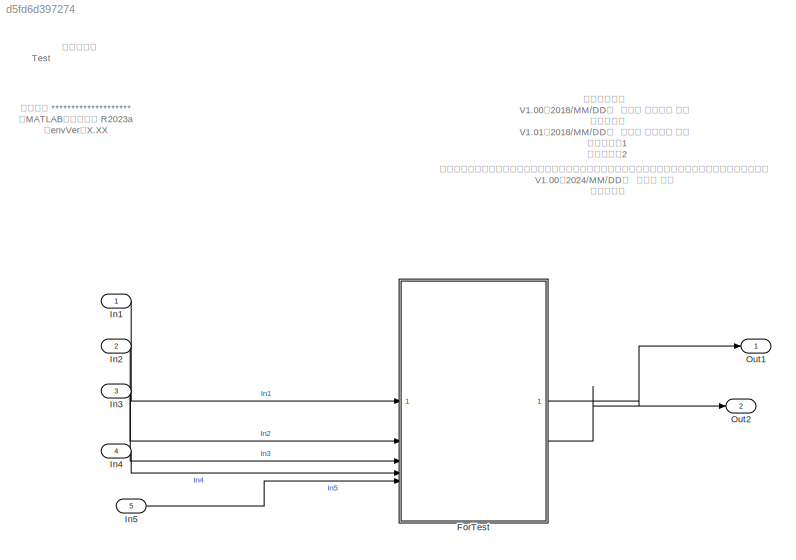
MODEL slx_d5fd6d397274
KIND model
CONFIG AbsTol = auto
CONFIG EnableMultiTasking = off
CONFIG FixedStep = SAMPLETIME
CONFIG MaxStep = auto
CONFIG MinStep = auto
CONFIG RelTol = 1e-3
CONFIG SampleTimeConstraint = Unconstrained
CONFIG SolverName = FixedStepDiscrete
CONFIG StartTime = 0.0
CONFIG StopTime = SIMTIME
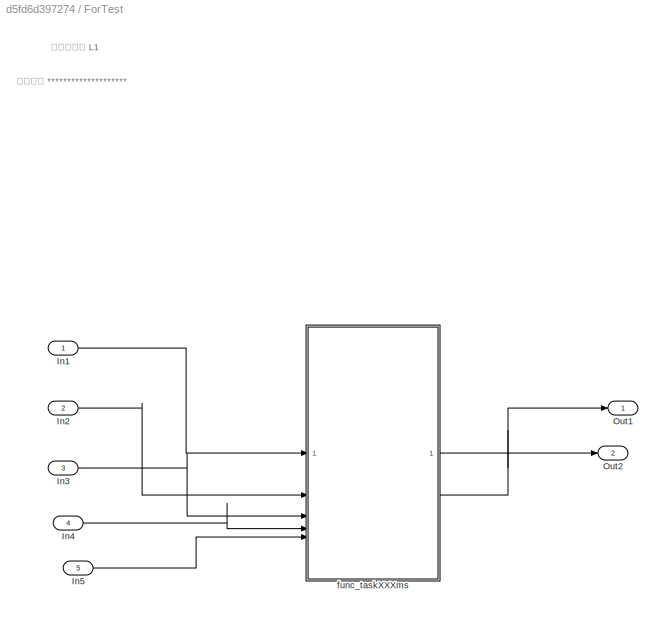
BLOCK [SubSystem] ForTest
  AttributesFormatString = (%<Description>)
  Description = XXX機能
  TreatAsAtomicUnit = on
BLOCK [Inport] ForTest/In1
  AttributesFormatString = (%<Description>)
  Description = 入力変数名
BLOCK [Inport] ForTest/In2
  AttributesFormatString = (%<Description>)
  Description = 入力変数名
  Port = 2
BLOCK [Inport] ForTest/In3
  AttributesFormatString = (%<Description>)
  Description = 入力変数名
  Port = 3
BLOCK [Inport] ForTest/In4
  AttributesFormatString = (%<Description>)
  Description = 入力変数名
  Port = 4
BLOCK [Inport] ForTest/In5
  AttributesFormatString = (%<Description>)
  Description = 入力変数名
  Port = 5
BLOCK [Outport] ForTest/Out1
  AttributesFormatString = (%<Description>)
  Description = 出力変数名
BLOCK [Outport] ForTest/Out2
  AttributesFormatString = (%<Description>)
  Description = 出力変数名
  Port = 2
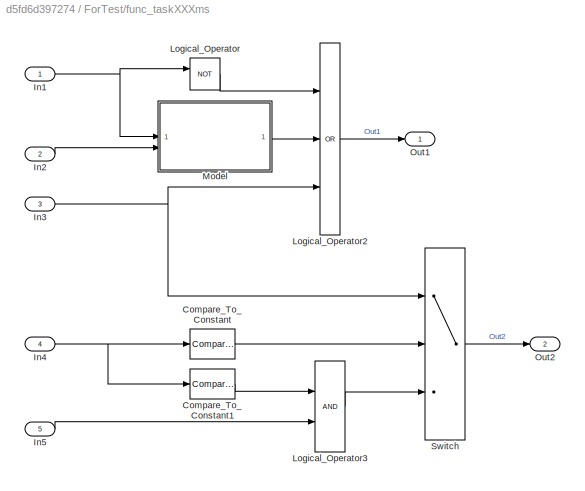
BLOCK [SubSystem] ForTest/func_taskXXXms
  AttributesFormatString = (%<Description>)
  Description = XXX周期タスク
  TreatAsAtomicUnit = on
BLOCK [Reference] ForTest/func_taskXXXms/Compare_To_Constant  REF=trse_cmn_lib_V2/Logic and Bit Operations/Compare_To_Constant
  Description = 論理演算ライブラリ（定数比較）
  SourceBlock = trse_cmn_lib_V2/Logic and Bit Operations/Compare_To_Constant
  SourceProductName = TR Common Library V2
  SourceType = Compare To Constant
BLOCK [Reference] ForTest/func_taskXXXms/Compare_To_Constant1  REF=trse_cmn_lib_V2/Logic and Bit Operations/Compare_To_Constant
  Description = 論理演算ライブラリ（定数比較）
  SourceBlock = trse_cmn_lib_V2/Logic and Bit Operations/Compare_To_Constant
  SourceProductName = TR Common Library V2
  SourceType = Compare To Constant
BLOCK [Inport] ForTest/func_taskXXXms/In1
  AttributesFormatString = (%<Description>)
  Description = 入力変数名
BLOCK [Inport] ForTest/func_taskXXXms/In2
  AttributesFormatString = (%<Description>)
  Description = 入力変数名
  Port = 2
BLOCK [Inport] ForTest/func_taskXXXms/In3
  AttributesFormatString = (%<Description>)
  Description = 入力変数名
  Port = 3
BLOCK [Inport] ForTest/func_taskXXXms/In4
  AttributesFormatString = (%<Description>)
  Description = 入力変数名
  Port = 4
BLOCK [Inport] ForTest/func_taskXXXms/In5
  AttributesFormatString = (%<Description>)
  Description = 入力変数名
  Port = 5
BLOCK [Logic] ForTest/func_taskXXXms/Logical_Operator
  Operator = NOT
  OutDataTypeStr = boolean
BLOCK [Logic] ForTest/func_taskXXXms/Logical_Operator2
  Inputs = 3
  Operator = OR
  OutDataTypeStr = boolean
BLOCK [Logic] ForTest/func_taskXXXms/Logical_Operator3
  OutDataTypeStr = boolean
BLOCK [ModelReference] ForTest/func_taskXXXms/Model
  AttributesFormatString = (%<Description>)
  Description = 機能名
  ModelNameDialog = reference.slx
  ModelReferenceVersion = 1.56
BLOCK [Outport] ForTest/func_taskXXXms/Out1
  AttributesFormatString = (%<Description>)
  Description = 出力変数名
BLOCK [Outport] ForTest/func_taskXXXms/Out2
  AttributesFormatString = (%<Description>)
  Description = 出力変数名
  Port = 2
BLOCK [Switch] ForTest/func_taskXXXms/Switch
  Criteria = u2 ~= 0
  RndMeth = Simplest
BLOCK [Inport] In1
  AttributesFormatString = (%<Description>)
  Description = 入力変数名
BLOCK [Inport] In2
  AttributesFormatString = (%<Description>)
  Description = 入力変数名
  Port = 2
BLOCK [Inport] In3
  AttributesFormatString = (%<Description>)
  Description = 入力変数名
  Port = 3
BLOCK [Inport] In4
  AttributesFormatString = (%<Description>)
  Description = 入力変数名
  Port = 4
BLOCK [Inport] In5
  AttributesFormatString = (%<Description>)
  Description = 入力変数名
  Port = 5
BLOCK [Outport] Out1
  AttributesFormatString = (%<Description>)
  Description = 出力変数名
BLOCK [Outport] Out2
  AttributesFormatString = (%<Description>)
  Description = 出力変数名
  Port = 2
ANNOTATION (root): 表紙レイヤ
ANNOTATION (root): Test
ANNOTATION (root): 【テンプレート更新履歴】（※本テンプレートを利用する際、本テンプレート更新履歴を削除すること） V1.00（2024/MM/DD） 作成者 氏名 ・新規作成
ANNOTATION (root): 【更新履歴】 V1.00（2018/MM/DD） 作成者 社員番号 氏名 ・新規作成 V1.01（2018/MM/DD） 作成者 社員番号 氏名 ・改訂内容1 ・改訂内容2
ANNOTATION (root): 【概要】 ******************** 【MATLABリリース】 R2023a 【envVer】X.XX
ANNOTATION ForTest: 構造レイヤ L1
ANNOTATION ForTest: 【概要】 ********************
LINE ForTest/In1:1 -> ForTest/func_taskXXXms:1
LINE ForTest/In2:1 -> ForTest/func_taskXXXms:2
LINE ForTest/In3:1 -> ForTest/func_taskXXXms:3
LINE ForTest/In4:1 -> ForTest/func_taskXXXms:4
LINE ForTest/In5:1 -> ForTest/func_taskXXXms:5
LINE ForTest/func_taskXXXms/Compare_To_Constant1:1 -> ForTest/func_taskXXXms/Logical_Operator3:1
LINE ForTest/func_taskXXXms/Compare_To_Constant:1 -> ForTest/func_taskXXXms/Switch:2
NET ForTest/func_taskXXXms/In1:1 -> ForTest/func_taskXXXms/Logical_Operator:1, ForTest/func_taskXXXms/Model:1
LINE ForTest/func_taskXXXms/In2:1 -> ForTest/func_taskXXXms/Model:2
NET ForTest/func_taskXXXms/In3:1 -> ForTest/func_taskXXXms/Logical_Operator2:3, ForTest/func_taskXXXms/Switch:1
NET ForTest/func_taskXXXms/In4:1 -> ForTest/func_taskXXXms/Compare_To_Constant1:1, ForTest/func_taskXXXms/Compare_To_Constant:1
LINE ForTest/func_taskXXXms/In5:1 -> ForTest/func_taskXXXms/Logical_Operator3:2
LINE ForTest/func_taskXXXms/Logical_Operator2:1 -> ForTest/func_taskXXXms/Out1:1
LINE ForTest/func_taskXXXms/Logical_Operator3:1 -> ForTest/func_taskXXXms/Switch:3
LINE ForTest/func_taskXXXms/Logical_Operator:1 -> ForTest/func_taskXXXms/Logical_Operator2:1
LINE ForTest/func_taskXXXms/Model:1 -> ForTest/func_taskXXXms/Logical_Operator2:2
LINE ForTest/func_taskXXXms/Switch:1 -> ForTest/func_taskXXXms/Out2:1
LINE ForTest/func_taskXXXms:1 -> ForTest/Out1:1
LINE ForTest/func_taskXXXms:2 -> ForTest/Out2:1
LINE ForTest:1 -> Out1:1
LINE ForTest:2 -> Out2:1
LINE In1:1 -> ForTest:1
LINE In2:1 -> ForTest:2
LINE In3:1 -> ForTest:3
LINE In4:1 -> ForTest:4
LINE In5:1 -> ForTest:5
note: NET lines group one-source signal fan-out (src -> all destinations, sorted); 1:1 wires keep LINE
